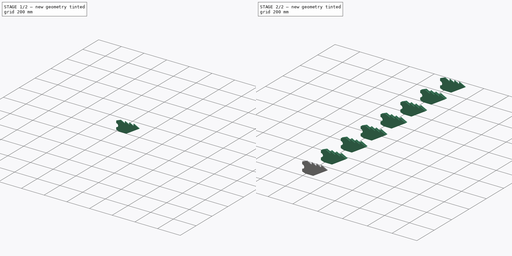
[diagram: build sequence overview — one tinted view per stage of 2, left to right]
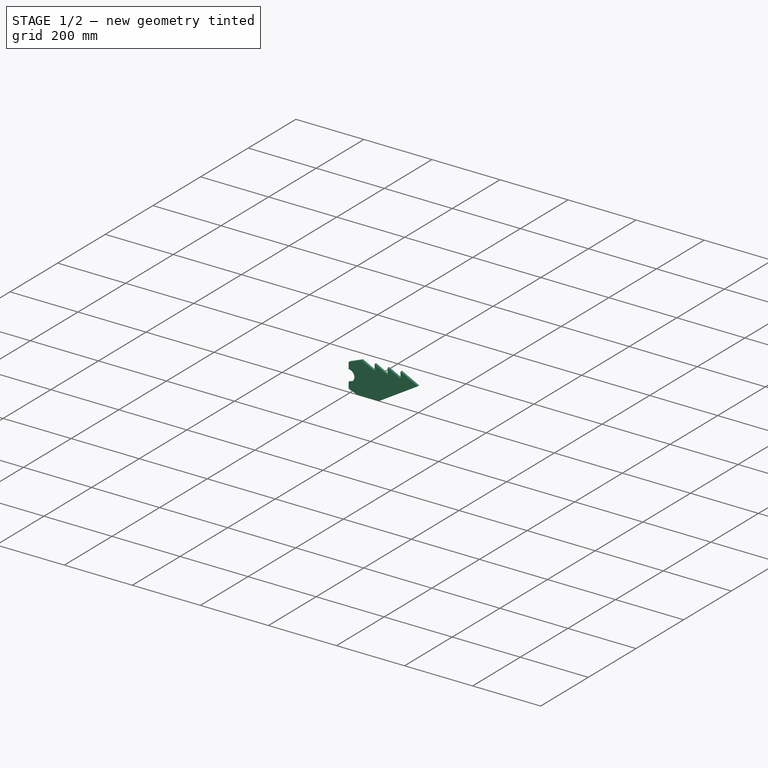
[diagram: stage 1 of 2 — iso view after this stage's code; geometry added in this stage tinted green]
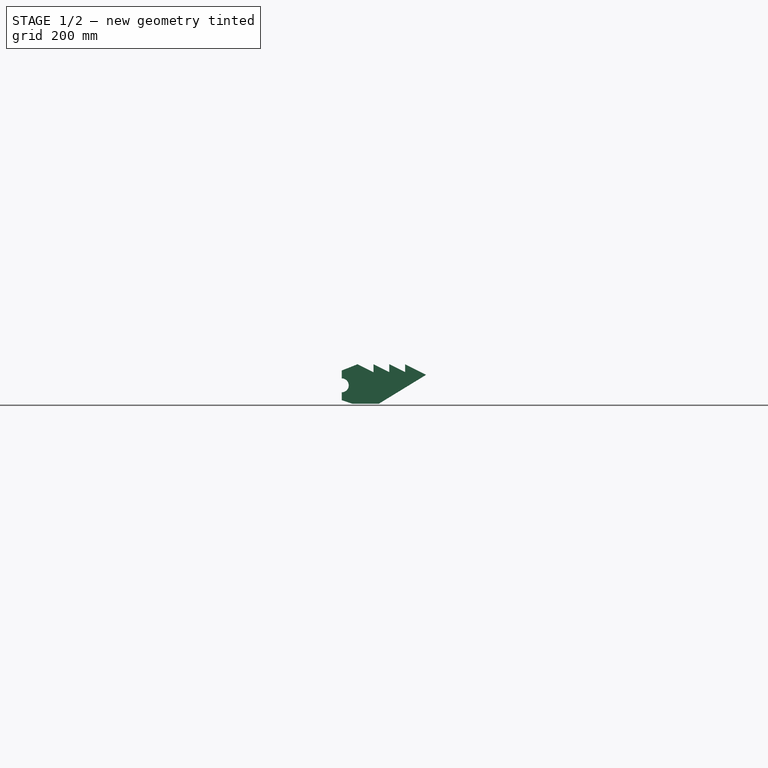
[diagram: stage 1 of 2 — front view after this stage's code; geometry added in this stage tinted green]
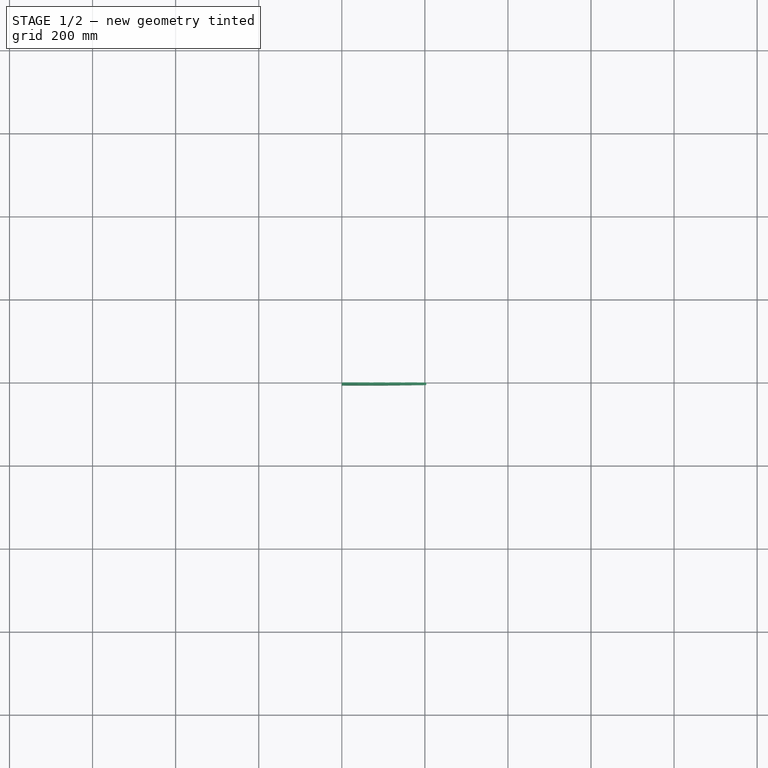
[diagram: stage 1 of 2 — top view after this stage's code; geometry added in this stage tinted green]
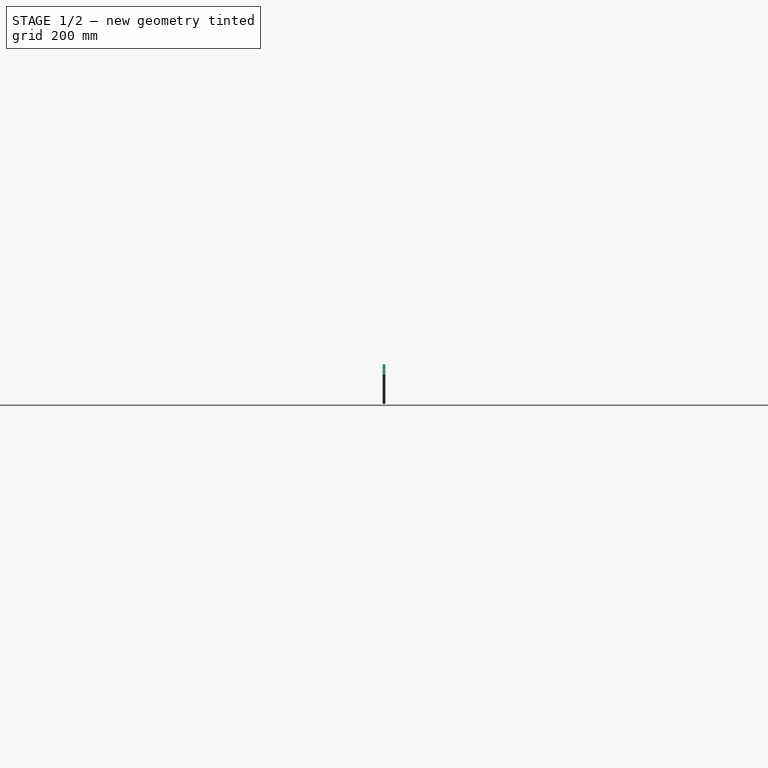
[diagram: stage 1 of 2 — right view after this stage's code; geometry added in this stage tinted green]
FCSTD DOCUMENT  (FreeCAD 0.17R13522 (Git))
Label: Inside Gussets
License: CreativeCommons Attribution
LicenseURL: http://creativecommons.org/licenses/by/4.0/
objects: Sketcher::SketchObject×1, PartDesign::Pad×1, PartDesign::Body×1, Part::FeaturePython×1
note: 5 computed .brp shape members not serialized (recipe doc carries the construction recipe); baked Part::Feature solids carry a one-line shape summary decoded from their .brp

FEATURE [Sketcher::SketchObject] Sketch  label="Inside Gussets"
  MapMode = 5
  Placement = pos=(0,0,0) rot=(1,0,0;1.5708rad)
  sketch-geometry (14):
    g0: LineSegment StartX=88.9 StartY=0 StartZ=0 EndX=203.2 EndY=69.85 EndZ=0
    g1: ArcOfCircle CenterX=0 CenterY=44.45 CenterZ=0 NormalX=0 NormalY=0 NormalZ=1 AngleXU=0 Radius=16.7005 StartAngle=4.71239 EndAngle=7.85398
    g2: LineSegment StartX=203.2 StartY=69.85 StartZ=0 EndX=152.4 EndY=95.25 EndZ=0
    g3: LineSegment StartX=152.4 StartY=95.25 StartZ=0 EndX=152.4 EndY=76.2 EndZ=0
    g4: LineSegment StartX=152.4 StartY=76.2 StartZ=0 EndX=114.3 EndY=95.25 EndZ=0
    g5: LineSegment StartX=114.3 StartY=95.25 StartZ=0 EndX=114.3 EndY=76.2 EndZ=0
    g6: LineSegment StartX=114.3 StartY=76.2 StartZ=0 EndX=76.2 EndY=95.25 EndZ=0
    g7: LineSegment StartX=76.2 StartY=95.25 StartZ=0 EndX=76.2 EndY=76.2 EndZ=0
    g8: LineSegment StartX=76.2 StartY=76.2 StartZ=0 EndX=38.1 EndY=95.25 EndZ=0
    g9: LineSegment StartX=0 StartY=80.2005 StartZ=0 EndX=0 EndY=61.1505 EndZ=0
    g10: LineSegment StartX=-2.2849e-08 StartY=27.7495 StartZ=0 EndX=-2.2849e-08 EndY=8.6995 EndZ=0
    g11: LineSegment StartX=25.4 StartY=0 StartZ=0 EndX=88.9 EndY=0 EndZ=0
    g12: LineSegment StartX=0 StartY=80.2005 StartZ=0 EndX=38.1 EndY=95.25 EndZ=0
    g13: LineSegment StartX=-2.2849e-08 StartY=8.6995 StartZ=0 EndX=25.4 EndY=0 EndZ=0
  constraints (40):
    c: Radius(g1) = 16.7005
    c: Vertical(g3)
    c: Coincident(g3,g4)
    c: Vertical(g5)
    c: Coincident(g5,g6)
    c: Vertical(g7)
    c: Coincident(g7,g8)
    c: Parallel(g8,g6)
    c: Parallel(g6,g4)
    c: Parallel(g4,g2)
    c: Equal(g3,g5)
    c: Equal(g5,g7)
    c: Equal(g4,g6)
    c: Equal(g6,g8)
    c: DistanceY(g3,g3) = 19.05
    c: DistanceX(g5,g4) = 38.1
    c: Coincident(g2,g3)
    c: Coincident(g5,g4)
    c: Coincident(g6,g7)
    c: Coincident(g0,g2)
    c: DistanceY(g0,g2) = 95.25
    c: DistanceX(g2,g0) = 50.8
    c: DistanceX(g1,g0) = 88.9
    c: DistanceX(g1,g0) = 203.2
    c: DistanceY(g-1,g1) = 44.45
    c: PointOnObject(g1,g-2)
    c: Vertical(g9)
    c: Coincident(g9,g1)
    c: Coincident(g1,g10)
    c: Vertical(g10)
    c: Coincident(g11,g0)
    c: Horizontal(g11)
    c: Coincident(g9,g12)
    c: PointOnObject(g1,g-2)
    c: Coincident(g11,g13)
    c: Coincident(g10,g13)
    c: PointOnObject(g11,g-1)
    c: Equal(g10,g9)
    c: DistanceX(g11,g11) = 63.5
    c: DistanceY(g9,g9) = 19.05
FEATURE [PartDesign::Pad] Pad
  Length = 6.35
  Length2 = 100.076
  Placement = pos=(0,0,0) rot=(1,0,0;1.5708rad)
  Profile = -> Sketch
  Type = 0
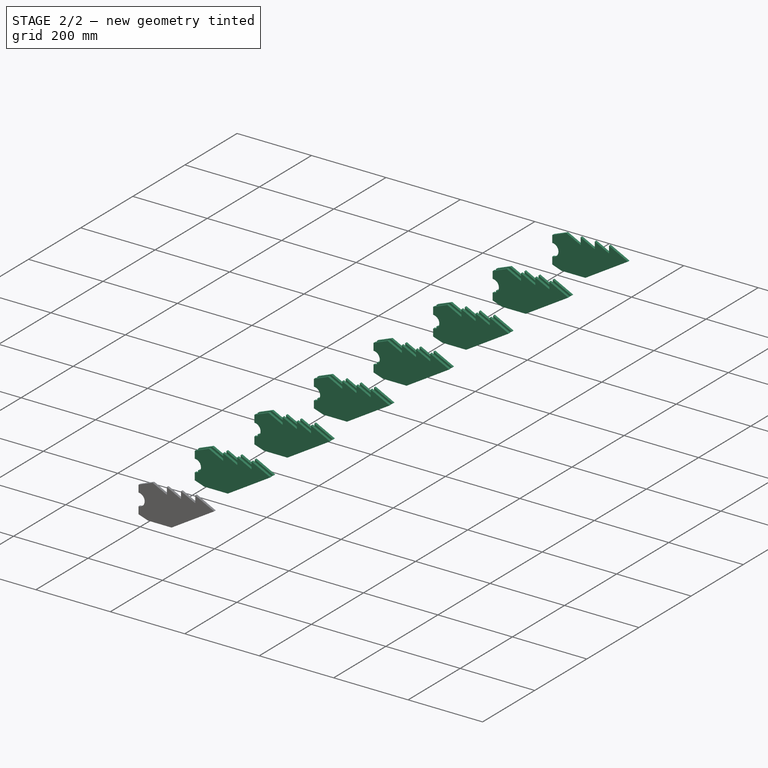
[diagram: stage 2 of 2 — iso view after this stage's code; geometry added in this stage tinted green]
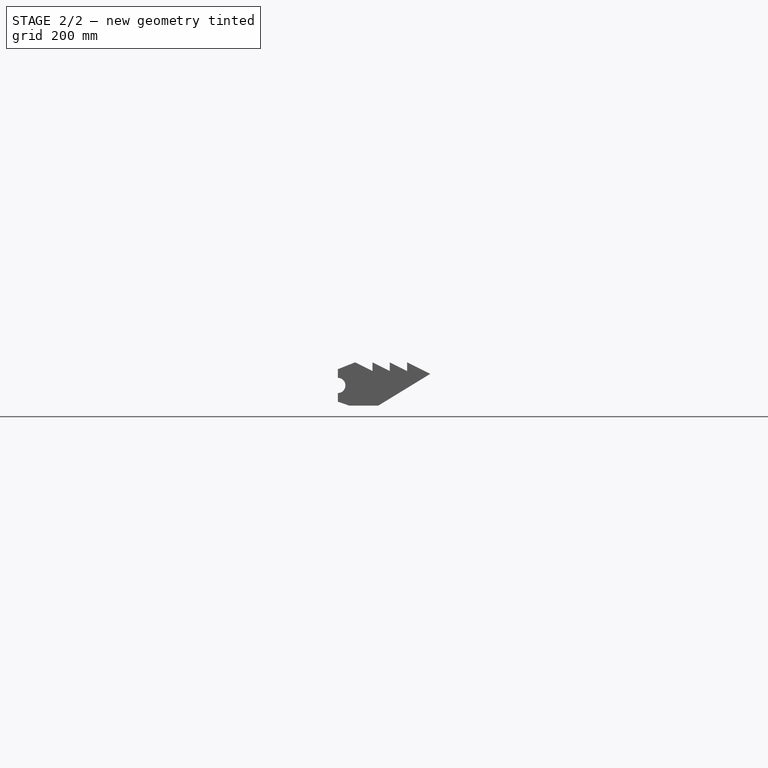
[diagram: stage 2 of 2 — front view after this stage's code; geometry added in this stage tinted green]
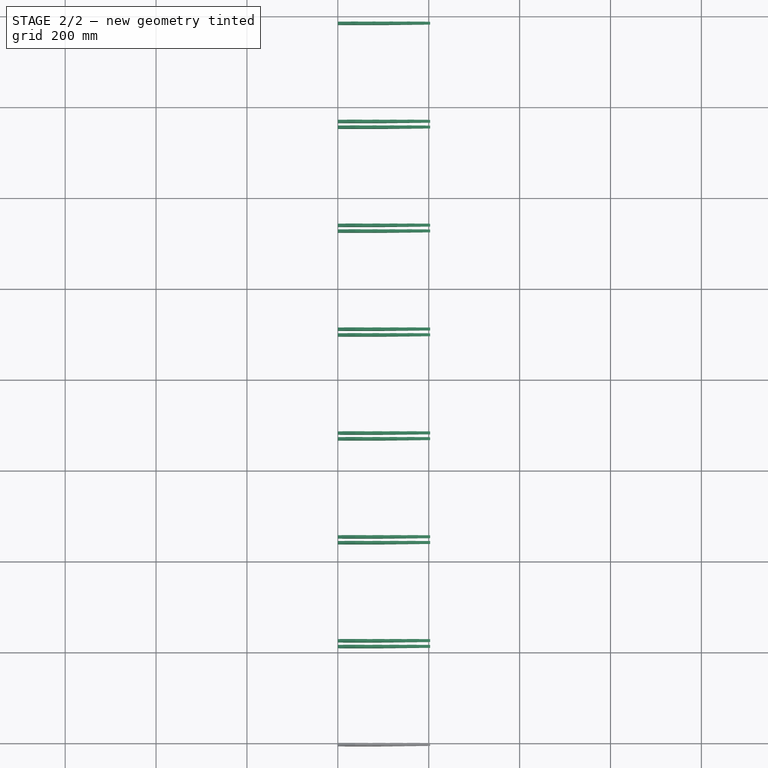
[diagram: stage 2 of 2 — top view after this stage's code; geometry added in this stage tinted green]
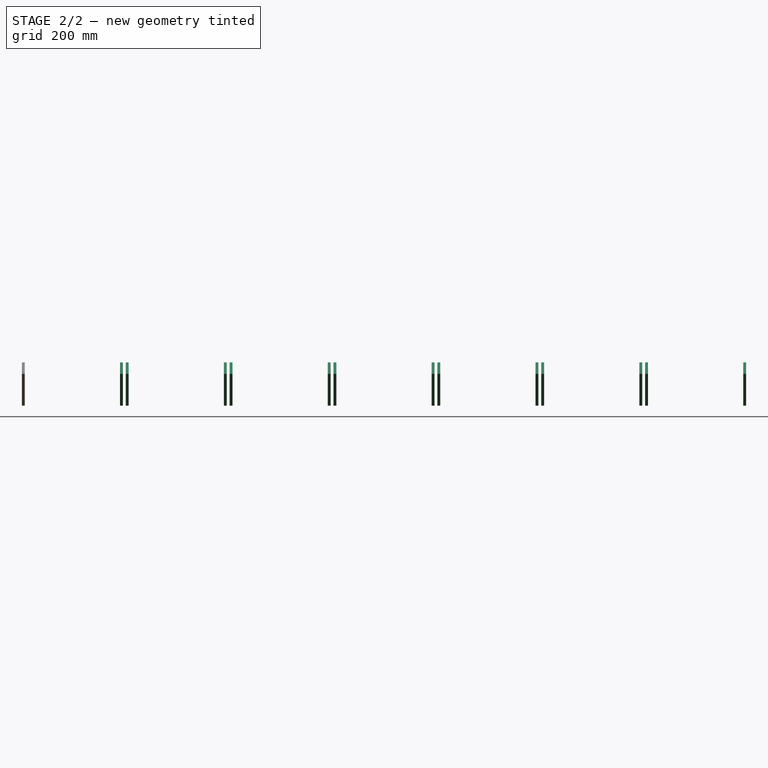
[diagram: stage 2 of 2 — right view after this stage's code; geometry added in this stage tinted green]
FEATURE [PartDesign::Body] Body
  Group = -> [Sketch,Pad]
  Origin = -> Origin
  Tip = -> Pad
FEATURE [Part::FeaturePython] Array  # Draft array (typed FeaturePython)
  Angle = 360
  ArrayType = 0
  Axis = (0,0,1)
  Base = -> Body
  Center = (0,0,0)
  Fuse = false
  IntervalAxis = (0,0,0)
  IntervalX = (0,215.9,0)
  IntervalY = (0,228.6,0)
  IntervalZ = (0,0,0)
  NumberPolar = 1
  NumberX = 2
  NumberY = 7
  NumberZ = 1
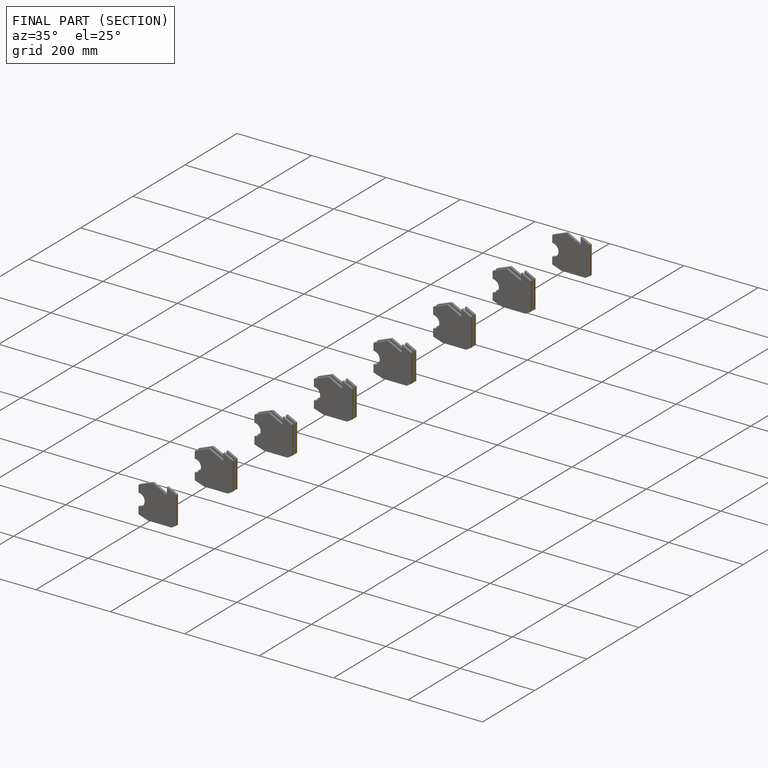
[diagram: finished part — half-section view (interior)]
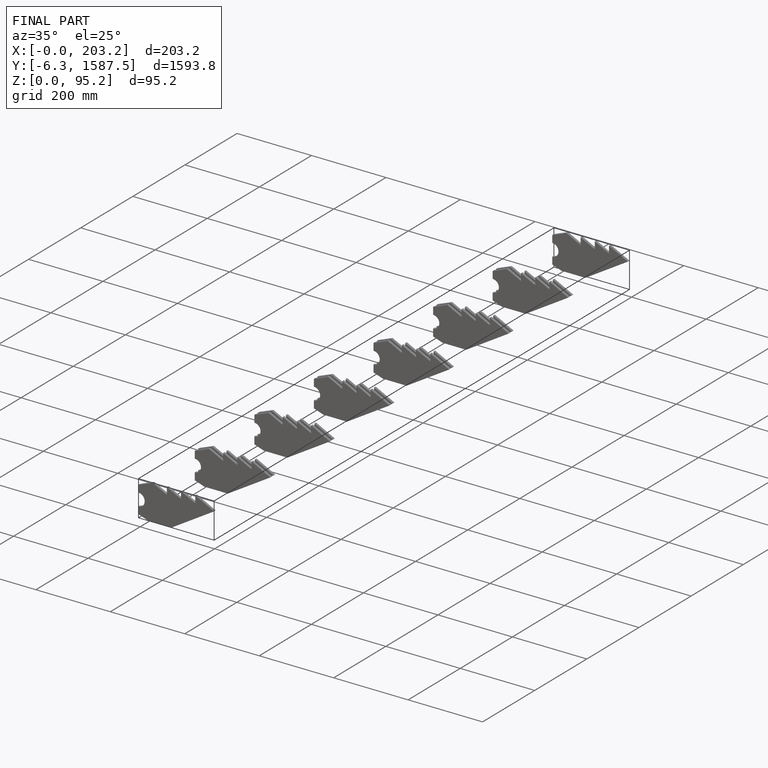
[diagram: finished part — iso view with bounding-box wireframe]
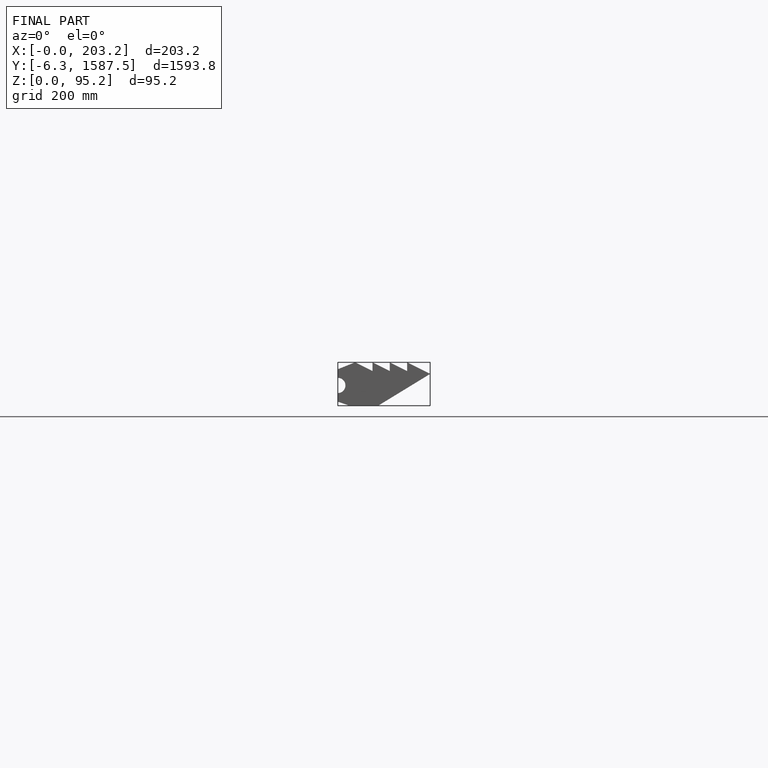
[diagram: finished part — front view with bounding-box wireframe]
